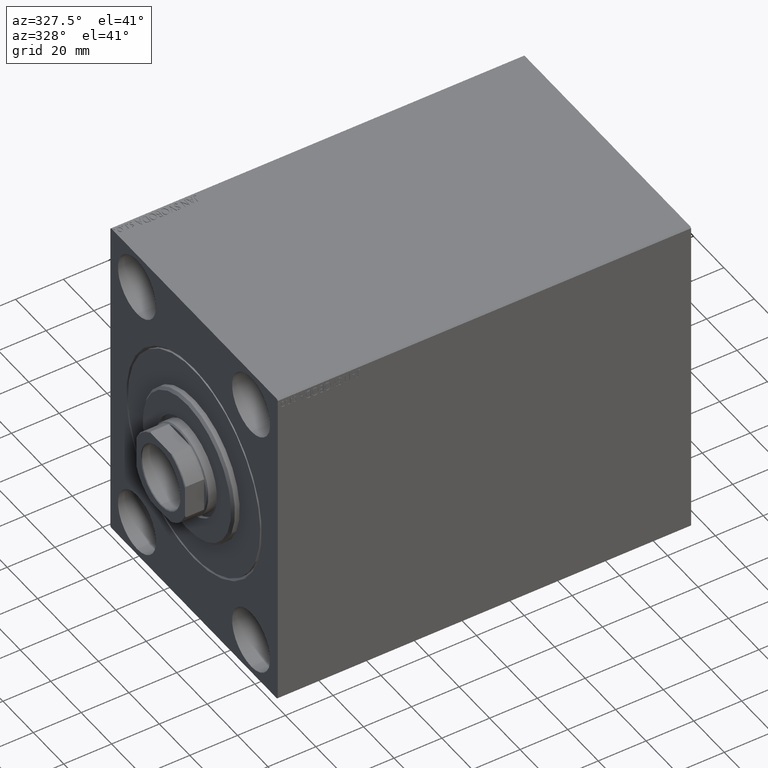
[diagram: clean part render]
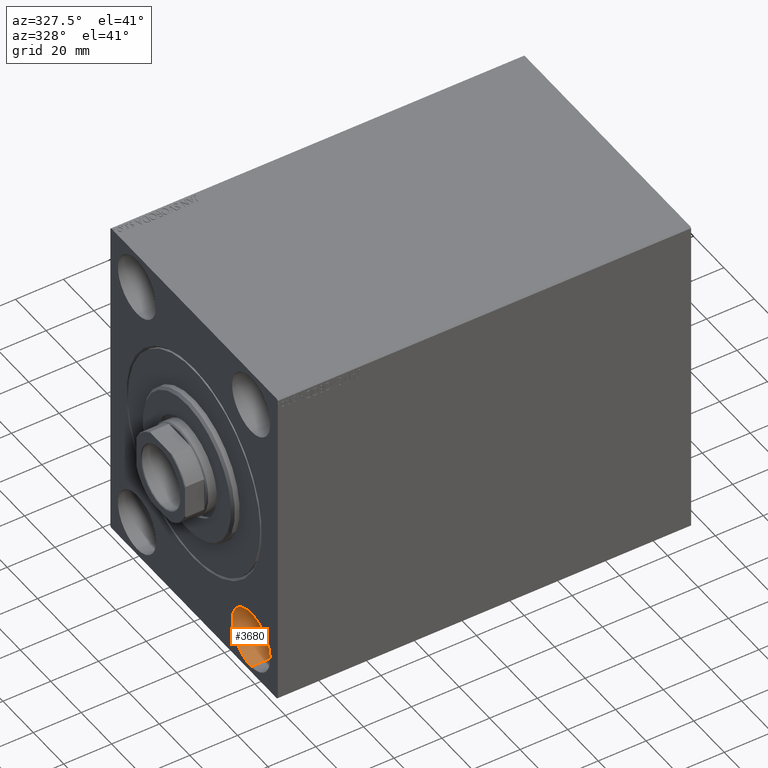
[diagram: same view with one face highlighted and labeled with its STEP entity id]
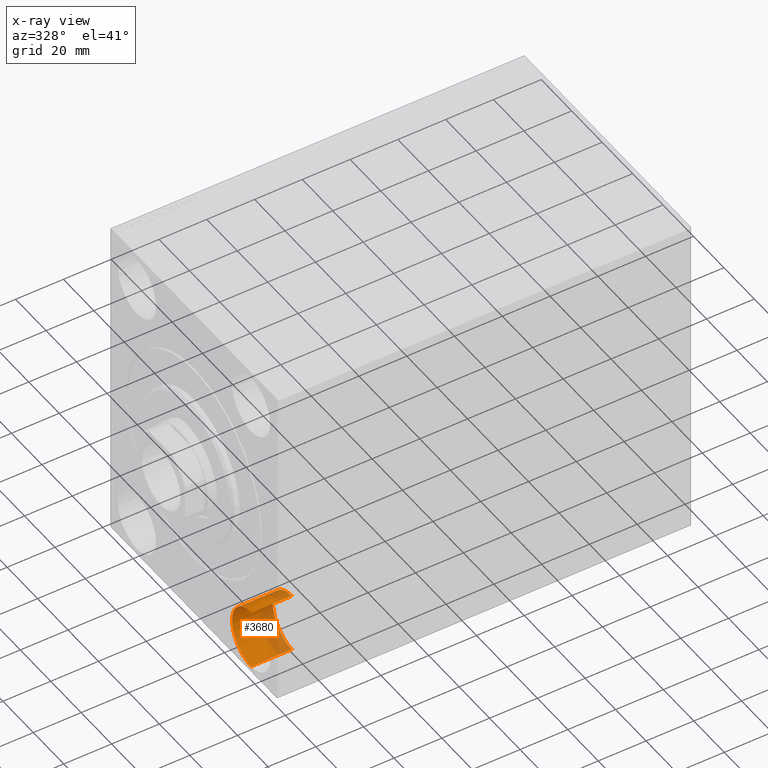
[diagram: x-ray of the same camera — body ghosted, the highlighted face saturated]
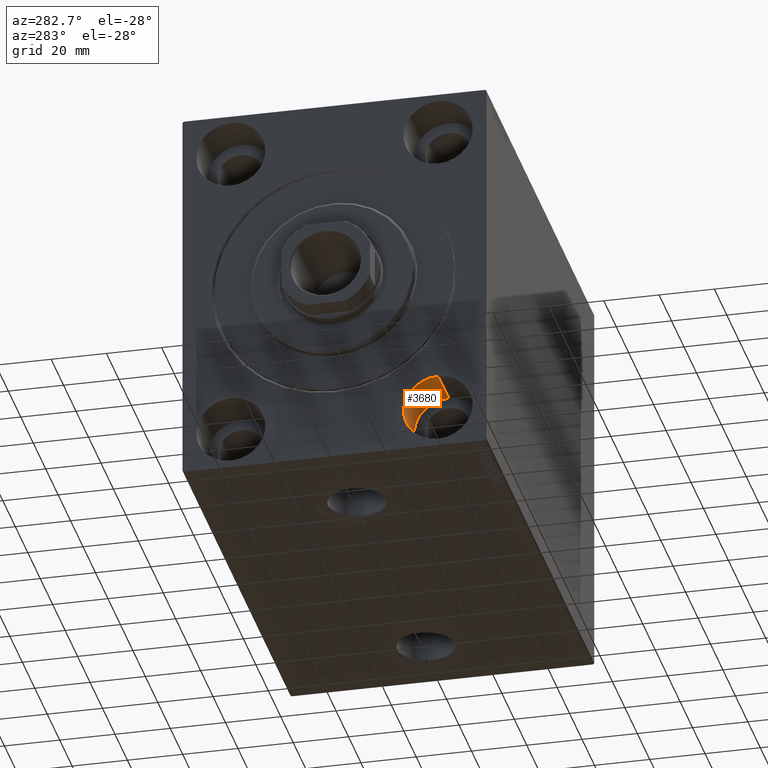
[diagram: same view with one face highlighted and labeled with its STEP entity id]
A machine part, auxiliary view. The second image highlights one B-rep face of the part: STEP entity #3680.
The next image is the same camera in x-ray: the body ghosted, the highlighted face saturated — about 30% of this face is hidden behind the body in this view.
A second angle (auxiliary view) of the same face is appended — the face is thin or edge-on in the first view.
In plain terms, the highlighted cylindrical surface (edge-blend (fillet) strip) has radius 12.5 mm, axis along (-1, -0, -0).
Its self-contained STEP definition (entity closure, byte-faithful):
#736 = DIRECTION ( 'NONE',  ( -1.000000000000000000, -0.000000000000000000, -0.000000000000000000 ) ) ;
#1566 = DIRECTION ( 'NONE',  ( 0.000000000000000000, 0.000000000000000000, 1.000000000000000000 ) ) ;
#3680 = ADVANCED_FACE ( 'NONE', ( #22662 ), #5710, .F. ) ;
#3712 = EDGE_CURVE ( 'NONE', #28141, #28336, #29799, .T. ) ;
#3825 = VECTOR ( 'NONE', #40042, 1000.000000000000000 ) ;
#5088 = AXIS2_PLACEMENT_3D ( 'NONE', #27270, #10328, #20133 ) ;
#5421 = CIRCLE ( 'NONE', #18223, 12.49999999999999645 ) ;
#5710 = CYLINDRICAL_SURFACE ( 'NONE', #9519, 12.49999999999999645 ) ;
#6038 = ORIENTED_EDGE ( 'NONE', *, *, #14428, .T. ) ;
#9519 = AXIS2_PLACEMENT_3D ( 'NONE', #43162, #43606, #16184 ) ;
#10328 = DIRECTION ( 'NONE',  ( -1.000000000000000000, 0.000000000000000000, 0.000000000000000000 ) ) ;
#10528 = EDGE_LOOP ( 'NONE', ( #20084, #37952, #18650, #6038 ) ) ;
#14428 = EDGE_CURVE ( 'NONE', #26810, #28336, #5421, .T. ) ;
#16184 = DIRECTION ( 'NONE',  ( 0.000000000000000000, 0.000000000000000000, 1.000000000000000000 ) ) ;
#16380 = CARTESIAN_POINT ( 'NONE',  ( 17.00000000000000000, -37.50000000000002132, -67.49999999999998579 ) ) ;
#17856 = DIRECTION ( 'NONE',  ( -1.000000000000000000, 0.000000000000000000, 0.000000000000000000 ) ) ;
#18223 = AXIS2_PLACEMENT_3D ( 'NONE', #35028, #17856, #1566 ) ;
#18650 = ORIENTED_EDGE ( 'NONE', *, *, #33710, .T. ) ;
#18673 = CARTESIAN_POINT ( 'NONE',  ( 0.000000000000000000, -37.50000000000002132, -42.49999999999999289 ) ) ;
#20084 = ORIENTED_EDGE ( 'NONE', *, *, #3712, .F. ) ;
#20133 = DIRECTION ( 'NONE',  ( 0.000000000000000000, 0.000000000000000000, 1.000000000000000000 ) ) ;
#21464 = LINE ( 'NONE', #31504, #36290 ) ;
#22662 = FACE_OUTER_BOUND ( 'NONE', #10528, .T. ) ;
#23558 = CARTESIAN_POINT ( 'NONE',  ( 17.00000000000000000, -37.50000000000002132, -67.49999999999998579 ) ) ;
#26810 = VERTEX_POINT ( 'NONE', #18673 ) ;
#27270 = CARTESIAN_POINT ( 'NONE',  ( 17.00000000000000000, -37.50000000000002132, -54.99999999999999289 ) ) ;
#27537 = CARTESIAN_POINT ( 'NONE',  ( 0.000000000000000000, -37.50000000000002132, -67.49999999999998579 ) ) ;
#28141 = VERTEX_POINT ( 'NONE', #16380 ) ;
#28336 = VERTEX_POINT ( 'NONE', #27537 ) ;
#29799 = LINE ( 'NONE', #23558, #3825 ) ;
#30732 = CIRCLE ( 'NONE', #5088, 12.49999999999999645 ) ;
#31504 = CARTESIAN_POINT ( 'NONE',  ( 17.00000000000000000, -37.50000000000002132, -42.49999999999999289 ) ) ;
#33710 = EDGE_CURVE ( 'NONE', #34360, #26810, #21464, .T. ) ;
#34360 = VERTEX_POINT ( 'NONE', #37542 ) ;
#35028 = CARTESIAN_POINT ( 'NONE',  ( 0.000000000000000000, -37.50000000000002132, -54.99999999999999289 ) ) ;
#36290 = VECTOR ( 'NONE', #736, 1000.000000000000000 ) ;
#37542 = CARTESIAN_POINT ( 'NONE',  ( 17.00000000000000000, -37.50000000000002132, -42.49999999999999289 ) ) ;
#37952 = ORIENTED_EDGE ( 'NONE', *, *, #42599, .F. ) ;
#40042 = DIRECTION ( 'NONE',  ( -1.000000000000000000, -0.000000000000000000, -0.000000000000000000 ) ) ;
#42599 = EDGE_CURVE ( 'NONE', #34360, #28141, #30732, .T. ) ;
#43162 = CARTESIAN_POINT ( 'NONE',  ( 17.00000000000000000, -37.50000000000002132, -54.99999999999999289 ) ) ;
#43606 = DIRECTION ( 'NONE',  ( -1.000000000000000000, -0.000000000000000000, -0.000000000000000000 ) ) ;